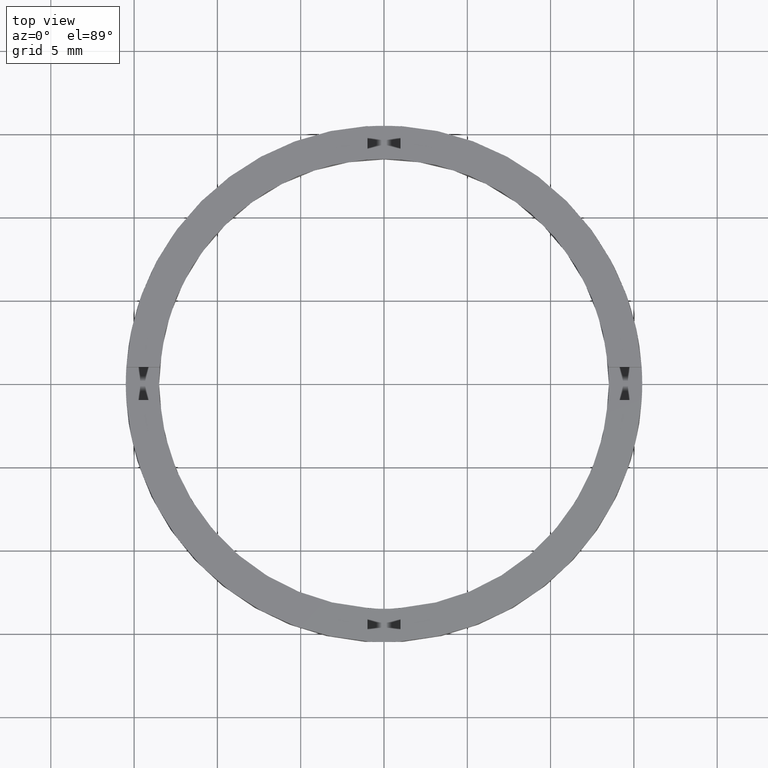
[diagram: clean part render]
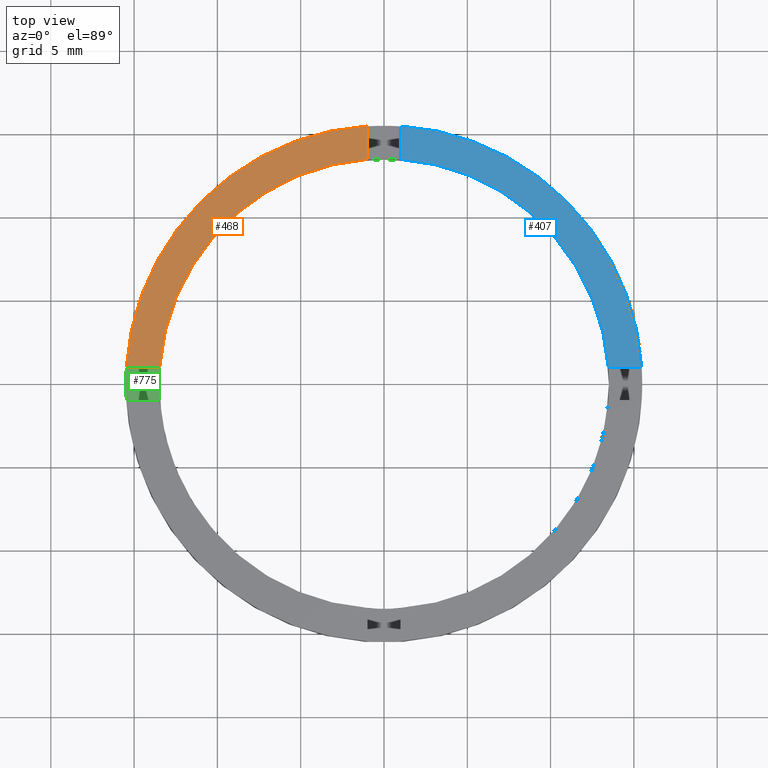
[diagram: same view with three faces highlighted in distinct colors, each labeled with its STEP entity id]
A machine part, top view with three faces highlighted in distinct colors.
Their STEP definitions:

[orange] entity #468 — the highlighted planar face has unit normal (0, 0, 1).
#44 = CARTESIAN_POINT ( 'NONE',  ( -1.000000000000024869, 13.46291201783625802, 2.500000000000000000 ) ) ;
#57 = ORIENTED_EDGE ( 'NONE', *, *, #671, .F. ) ;
#60 = CARTESIAN_POINT ( 'NONE',  ( 0.000000000000000000, 0.000000000000000000, 2.500000000000000000 ) ) ;
#72 = DIRECTION ( 'NONE',  ( 0.000000000000000000, 0.000000000000000000, 1.000000000000000000 ) ) ;
#123 = PLANE ( 'NONE',  #488 ) ;
#149 = CIRCLE ( 'NONE', #774, 13.50000000000000000 ) ;
#163 = VECTOR ( 'NONE', #223, 1000.000000000000000 ) ;
#187 = VECTOR ( 'NONE', #408, 1000.000000000000000 ) ;
#222 = EDGE_LOOP ( 'NONE', ( #227, #290, #57, #493 ) ) ;
#223 = DIRECTION ( 'NONE',  ( -1.000000000000000000, -1.734723475976807094E-16, 0.000000000000000000 ) ) ;
#227 = ORIENTED_EDGE ( 'NONE', *, *, #422, .F. ) ;
#249 = CARTESIAN_POINT ( 'NONE',  ( -1.000000000000024869, 15.46770829825801741, 2.500000000000000000 ) ) ;
#253 = DIRECTION ( 'NONE',  ( 1.000000000000000000, 0.000000000000000000, -0.000000000000000000 ) ) ;
#262 = EDGE_CURVE ( 'NONE', #546, #479, #385, .T. ) ;
#290 = ORIENTED_EDGE ( 'NONE', *, *, #262, .T. ) ;
#336 = DIRECTION ( 'NONE',  ( 1.000000000000000000, 0.000000000000000000, 0.000000000000000000 ) ) ;
#343 = CARTESIAN_POINT ( 'NONE',  ( -15.46770829825802096, 0.9999999999999767963, 2.500000000000000000 ) ) ;
#356 = DIRECTION ( 'NONE',  ( 0.000000000000000000, 0.000000000000000000, 1.000000000000000000 ) ) ;
#367 = CARTESIAN_POINT ( 'NONE',  ( 0.000000000000000000, 0.000000000000000000, 2.500000000000000000 ) ) ;
#383 = CARTESIAN_POINT ( 'NONE',  ( 0.000000000000000000, 0.000000000000000000, 2.500000000000000000 ) ) ;
#385 = CIRCLE ( 'NONE', #623, 15.50000000000000000 ) ;
#408 = DIRECTION ( 'NONE',  ( -0.000000000000000000, -1.000000000000000000, -0.000000000000000000 ) ) ;
#422 = EDGE_CURVE ( 'NONE', #546, #685, #702, .T. ) ;
#444 = FACE_OUTER_BOUND ( 'NONE', #222, .T. ) ;
#468 = ADVANCED_FACE ( 'NONE', ( #444 ), #123, .T. ) ;
#479 = VERTEX_POINT ( 'NONE', #343 ) ;
#488 = AXIS2_PLACEMENT_3D ( 'NONE', #367, #72, #253 ) ;
#493 = ORIENTED_EDGE ( 'NONE', *, *, #539, .F. ) ;
#539 = EDGE_CURVE ( 'NONE', #685, #579, #149, .T. ) ;
#540 = CARTESIAN_POINT ( 'NONE',  ( -1.000000000000024869, 5.500000000000000000, 2.500000000000000000 ) ) ;
#546 = VERTEX_POINT ( 'NONE', #249 ) ;
#579 = VERTEX_POINT ( 'NONE', #626 ) ;
#615 = CARTESIAN_POINT ( 'NONE',  ( -5.500000000000185629, 0.9999999999999785727, 2.500000000000000000 ) ) ;
#623 = AXIS2_PLACEMENT_3D ( 'NONE', #383, #741, #336 ) ;
#626 = CARTESIAN_POINT ( 'NONE',  ( -13.46291201783626157, 0.9999999999999770184, 2.500000000000000000 ) ) ;
#671 = EDGE_CURVE ( 'NONE', #579, #479, #678, .T. ) ;
#678 = LINE ( 'NONE', #615, #163 ) ;
#685 = VERTEX_POINT ( 'NONE', #44 ) ;
#702 = LINE ( 'NONE', #540, #187 ) ;
#741 = DIRECTION ( 'NONE',  ( 0.000000000000000000, 0.000000000000000000, 1.000000000000000000 ) ) ;
#760 = DIRECTION ( 'NONE',  ( 1.000000000000000000, 0.000000000000000000, 0.000000000000000000 ) ) ;
#774 = AXIS2_PLACEMENT_3D ( 'NONE', #60, #356, #760 ) ;

[blue] entity #407 — the highlighted planar face has unit normal (0, 0, 1).
#52 = VERTEX_POINT ( 'NONE', #349 ) ;
#76 = AXIS2_PLACEMENT_3D ( 'NONE', #472, #782, #645 ) ;
#111 = CARTESIAN_POINT ( 'NONE',  ( 13.46291201783627045, 0.9999999999998409050, 2.500000000000000000 ) ) ;
#142 = EDGE_CURVE ( 'NONE', #239, #437, #369, .T. ) ;
#181 = FACE_OUTER_BOUND ( 'NONE', #563, .T. ) ;
#185 = CARTESIAN_POINT ( 'NONE',  ( 0.9999999999999751310, 15.46770829825802096, 2.500000000000000000 ) ) ;
#224 = CARTESIAN_POINT ( 'NONE',  ( 5.499999999999994671, 0.9999999999998404610, 2.500000000000000000 ) ) ;
#228 = ORIENTED_EDGE ( 'NONE', *, *, #778, .T. ) ;
#235 = CARTESIAN_POINT ( 'NONE',  ( 0.000000000000000000, 0.000000000000000000, 2.500000000000000000 ) ) ;
#239 = VERTEX_POINT ( 'NONE', #275 ) ;
#241 = ORIENTED_EDGE ( 'NONE', *, *, #430, .F. ) ;
#260 = CARTESIAN_POINT ( 'NONE',  ( 0.9999999999999751310, 5.500000000000000000, 2.500000000000000000 ) ) ;
#275 = CARTESIAN_POINT ( 'NONE',  ( 15.46770829825802984, 0.9999999999998409050, 2.500000000000000000 ) ) ;
#282 = ORIENTED_EDGE ( 'NONE', *, *, #329, .F. ) ;
#329 = EDGE_CURVE ( 'NONE', #52, #439, #624, .T. ) ;
#349 = CARTESIAN_POINT ( 'NONE',  ( 0.9999999999999751310, 13.46291201783626335, 2.500000000000000000 ) ) ;
#353 = DIRECTION ( 'NONE',  ( 0.000000000000000000, 0.000000000000000000, 1.000000000000000000 ) ) ;
#354 = DIRECTION ( 'NONE',  ( 1.000000000000000000, 0.000000000000000000, 0.000000000000000000 ) ) ;
#361 = VECTOR ( 'NONE', #556, 1000.000000000000000 ) ;
#369 = LINE ( 'NONE', #224, #361 ) ;
#407 = ADVANCED_FACE ( 'NONE', ( #181 ), #726, .T. ) ;
#412 = DIRECTION ( 'NONE',  ( 1.000000000000000000, 0.000000000000000000, -0.000000000000000000 ) ) ;
#430 = EDGE_CURVE ( 'NONE', #437, #52, #451, .T. ) ;
#437 = VERTEX_POINT ( 'NONE', #111 ) ;
#439 = VERTEX_POINT ( 'NONE', #185 ) ;
#451 = CIRCLE ( 'NONE', #76, 13.50000000000000000 ) ;
#472 = CARTESIAN_POINT ( 'NONE',  ( 0.000000000000000000, 0.000000000000000000, 2.500000000000000000 ) ) ;
#481 = DIRECTION ( 'NONE',  ( 0.000000000000000000, 0.000000000000000000, 1.000000000000000000 ) ) ;
#500 = ORIENTED_EDGE ( 'NONE', *, *, #142, .F. ) ;
#556 = DIRECTION ( 'NONE',  ( -1.000000000000000000, -4.336808689942017736E-17, -0.000000000000000000 ) ) ;
#563 = EDGE_LOOP ( 'NONE', ( #282, #241, #500, #228 ) ) ;
#593 = CARTESIAN_POINT ( 'NONE',  ( 0.000000000000000000, 0.000000000000000000, 2.500000000000000000 ) ) ;
#598 = DIRECTION ( 'NONE',  ( 0.000000000000000000, 1.000000000000000000, 0.000000000000000000 ) ) ;
#624 = LINE ( 'NONE', #260, #625 ) ;
#625 = VECTOR ( 'NONE', #598, 1000.000000000000000 ) ;
#645 = DIRECTION ( 'NONE',  ( 1.000000000000000000, 0.000000000000000000, 0.000000000000000000 ) ) ;
#669 = CIRCLE ( 'NONE', #713, 15.50000000000000000 ) ;
#713 = AXIS2_PLACEMENT_3D ( 'NONE', #593, #481, #354 ) ;
#726 = PLANE ( 'NONE',  #765 ) ;
#765 = AXIS2_PLACEMENT_3D ( 'NONE', #235, #353, #412 ) ;
#778 = EDGE_CURVE ( 'NONE', #239, #439, #669, .T. ) ;
#782 = DIRECTION ( 'NONE',  ( 0.000000000000000000, 0.000000000000000000, 1.000000000000000000 ) ) ;

[green] entity #775 — the highlighted planar face has unit normal (0, 0, 1).
#15 = CARTESIAN_POINT ( 'NONE',  ( -15.46770829825801741, -1.000000000000023315, 1.500000000000000000 ) ) ;
#54 = EDGE_LOOP ( 'NONE', ( #204, #300, #460, #547, #566, #443 ) ) ;
#55 = VERTEX_POINT ( 'NONE', #590 ) ;
#103 = EDGE_CURVE ( 'NONE', #736, #280, #643, .T. ) ;
#117 = CIRCLE ( 'NONE', #448, 15.50000000000000000 ) ;
#125 = AXIS2_PLACEMENT_3D ( 'NONE', #405, #629, #687 ) ;
#131 = EDGE_CURVE ( 'NONE', #571, #208, #634, .T. ) ;
#135 = DIRECTION ( 'NONE',  ( 1.000000000000000000, 1.734723475976807094E-16, -0.000000000000000000 ) ) ;
#175 = VECTOR ( 'NONE', #135, 1000.000000000000000 ) ;
#194 = CARTESIAN_POINT ( 'NONE',  ( -13.46291201783626157, 0.9999999999999770184, 1.500000000000000000 ) ) ;
#204 = ORIENTED_EDGE ( 'NONE', *, *, #257, .T. ) ;
#208 = VERTEX_POINT ( 'NONE', #15 ) ;
#209 = DIRECTION ( 'NONE',  ( 1.000000000000000000, 0.000000000000000000, 0.000000000000000000 ) ) ;
#219 = CARTESIAN_POINT ( 'NONE',  ( 0.000000000000000000, 0.000000000000000000, 1.500000000000000000 ) ) ;
#252 = DIRECTION ( 'NONE',  ( 0.000000000000000000, 0.000000000000000000, 1.000000000000000000 ) ) ;
#257 = EDGE_CURVE ( 'NONE', #55, #571, #117, .T. ) ;
#278 = CARTESIAN_POINT ( 'NONE',  ( -5.500000000000185629, -1.000000000000021538, 1.500000000000000000 ) ) ;
#280 = VERTEX_POINT ( 'NONE', #453 ) ;
#300 = ORIENTED_EDGE ( 'NONE', *, *, #131, .T. ) ;
#303 = AXIS2_PLACEMENT_3D ( 'NONE', #717, #252, #483 ) ;
#325 = AXIS2_PLACEMENT_3D ( 'NONE', #409, #597, #473 ) ;
#347 = EDGE_CURVE ( 'NONE', #359, #736, #396, .T. ) ;
#348 = PLANE ( 'NONE',  #325 ) ;
#359 = VERTEX_POINT ( 'NONE', #194 ) ;
#388 = CARTESIAN_POINT ( 'NONE',  ( 0.000000000000000000, 0.000000000000000000, 1.500000000000000000 ) ) ;
#396 = CIRCLE ( 'NONE', #303, 13.50000000000000000 ) ;
#397 = DIRECTION ( 'NONE',  ( 0.000000000000000000, 0.000000000000000000, 1.000000000000000000 ) ) ;
#404 = DIRECTION ( 'NONE',  ( -1.000000000000000000, -1.734723475976807094E-16, 0.000000000000000000 ) ) ;
#405 = CARTESIAN_POINT ( 'NONE',  ( 0.000000000000000000, 0.000000000000000000, 1.500000000000000000 ) ) ;
#409 = CARTESIAN_POINT ( 'NONE',  ( 0.000000000000000000, 0.000000000000000000, 1.500000000000000000 ) ) ;
#443 = ORIENTED_EDGE ( 'NONE', *, *, #600, .T. ) ;
#448 = AXIS2_PLACEMENT_3D ( 'NONE', #219, #504, #509 ) ;
#453 = CARTESIAN_POINT ( 'NONE',  ( -13.46291201783625802, -1.000000000000023093, 1.500000000000000000 ) ) ;
#460 = ORIENTED_EDGE ( 'NONE', *, *, #711, .T. ) ;
#473 = DIRECTION ( 'NONE',  ( 1.000000000000000000, 0.000000000000000000, -0.000000000000000000 ) ) ;
#483 = DIRECTION ( 'NONE',  ( 1.000000000000000000, 0.000000000000000000, 0.000000000000000000 ) ) ;
#504 = DIRECTION ( 'NONE',  ( 0.000000000000000000, 0.000000000000000000, 1.000000000000000000 ) ) ;
#509 = DIRECTION ( 'NONE',  ( 1.000000000000000000, 0.000000000000000000, 0.000000000000000000 ) ) ;
#515 = CARTESIAN_POINT ( 'NONE',  ( -15.50000000000000000, 0.000000000000000000, 1.500000000000000000 ) ) ;
#547 = ORIENTED_EDGE ( 'NONE', *, *, #103, .F. ) ;
#566 = ORIENTED_EDGE ( 'NONE', *, *, #347, .F. ) ;
#571 = VERTEX_POINT ( 'NONE', #515 ) ;
#590 = CARTESIAN_POINT ( 'NONE',  ( -15.46770829825802096, 0.9999999999999767963, 1.500000000000000000 ) ) ;
#597 = DIRECTION ( 'NONE',  ( 0.000000000000000000, 0.000000000000000000, 1.000000000000000000 ) ) ;
#600 = EDGE_CURVE ( 'NONE', #359, #55, #676, .T. ) ;
#613 = AXIS2_PLACEMENT_3D ( 'NONE', #388, #397, #209 ) ;
#629 = DIRECTION ( 'NONE',  ( 0.000000000000000000, 0.000000000000000000, 1.000000000000000000 ) ) ;
#634 = CIRCLE ( 'NONE', #613, 15.50000000000000000 ) ;
#643 = CIRCLE ( 'NONE', #125, 13.50000000000000000 ) ;
#668 = FACE_OUTER_BOUND ( 'NONE', #54, .T. ) ;
#676 = LINE ( 'NONE', #742, #693 ) ;
#682 = LINE ( 'NONE', #278, #175 ) ;
#687 = DIRECTION ( 'NONE',  ( 1.000000000000000000, 0.000000000000000000, 0.000000000000000000 ) ) ;
#693 = VECTOR ( 'NONE', #404, 1000.000000000000000 ) ;
#706 = CARTESIAN_POINT ( 'NONE',  ( -13.50000000000000000, 0.000000000000000000, 1.500000000000000000 ) ) ;
#711 = EDGE_CURVE ( 'NONE', #208, #280, #682, .T. ) ;
#717 = CARTESIAN_POINT ( 'NONE',  ( 0.000000000000000000, 0.000000000000000000, 1.500000000000000000 ) ) ;
#736 = VERTEX_POINT ( 'NONE', #706 ) ;
#742 = CARTESIAN_POINT ( 'NONE',  ( -5.500000000000185629, 0.9999999999999785727, 1.500000000000000000 ) ) ;
#775 = ADVANCED_FACE ( 'NONE', ( #668 ), #348, .T. ) ;